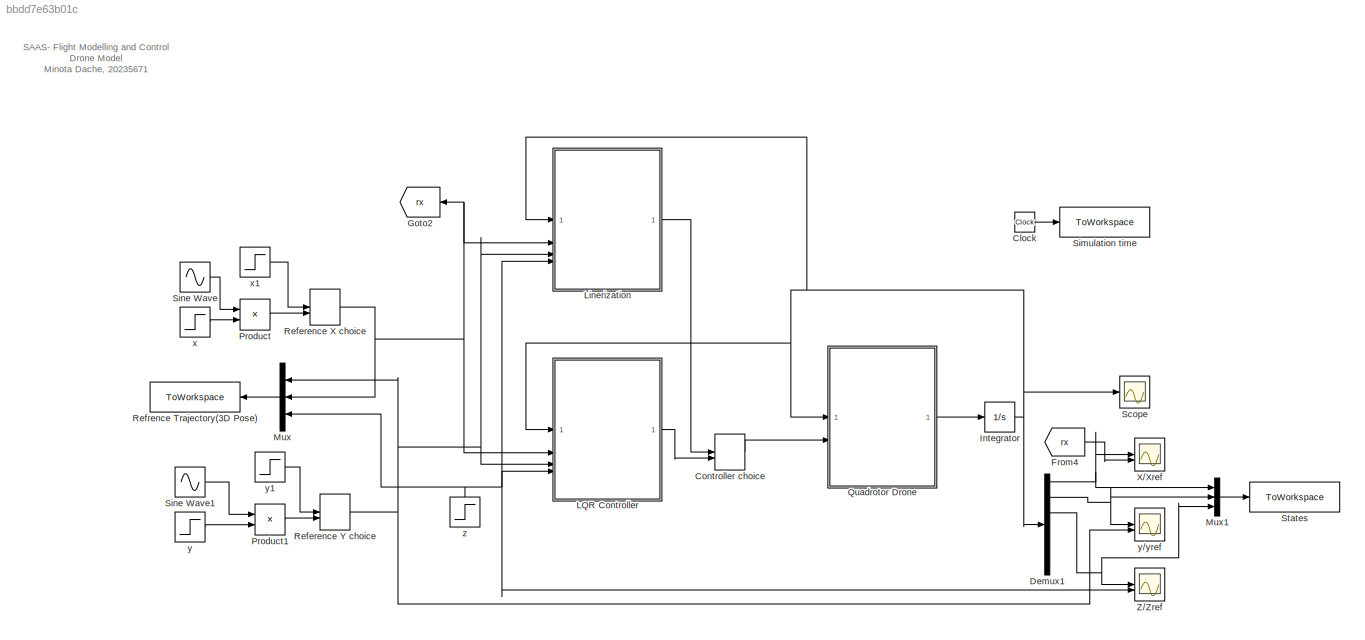
MODEL slx_bbdd7e63b01c
KIND model
CONFIG AbsTol = auto
CONFIG EnableMultiTasking = off
CONFIG FixedStep = auto
CONFIG MaxStep = auto
CONFIG MinStep = auto
CONFIG RelTol = 1e-3
CONFIG SampleTimeConstraint = Unconstrained
CONFIG SolverName = VariableStepAuto
CONFIG StartTime = 0.0
CONFIG StopTime = 100
BLOCK [Clock] Clock
BLOCK [ManualSwitch] Controller choice
BLOCK [Demux] Demux1
  Outputs = 12
BLOCK [From] From4
  GotoTag = rx
BLOCK [Goto] Goto2
  GotoTag = rx
  NameLocation = top
BLOCK [Integrator] Integrator
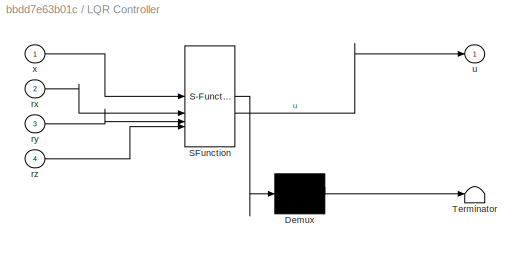
BLOCK [SubSystem] LQR Controller
  ErrorFcn = Stateflow.Translate.translate
  PermitHierarchicalResolution = ExplicitOnly
  SFBlockType = MATLAB Function
  TreatAsAtomicUnit = on
BLOCK [Demux] LQR Controller/ Demux 
  Outputs = 1
BLOCK [S-Function] LQR Controller/ SFunction 
  EnableBusSupport = on
  FunctionName = sf_sfun
  PortCounts = [4 2]
  SFcnIsStateOwnerBlock = off
  SFunctionDeploymentMode = off
  Tag = Stateflow S-Function 1
BLOCK [Terminator] LQR Controller/ Terminator 
BLOCK [Inport] LQR Controller/rx
  Port = 2
BLOCK [Inport] LQR Controller/ry
  Port = 3
BLOCK [Inport] LQR Controller/rz
  Port = 4
BLOCK [Outport] LQR Controller/u
BLOCK [Inport] LQR Controller/x
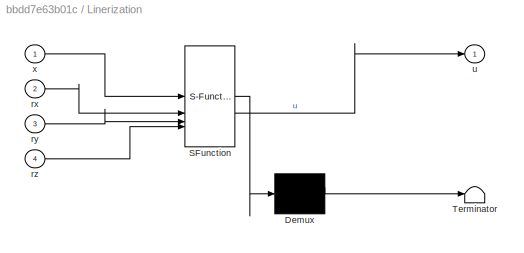
BLOCK [SubSystem] Linerization
  ErrorFcn = Stateflow.Translate.translate
  PermitHierarchicalResolution = ExplicitOnly
  SFBlockType = MATLAB Function
  TreatAsAtomicUnit = on
BLOCK [Demux] Linerization/ Demux 
  Outputs = 1
BLOCK [S-Function] Linerization/ SFunction 
  EnableBusSupport = on
  FunctionName = sf_sfun
  PortCounts = [4 2]
  SFcnIsStateOwnerBlock = off
  SFunctionDeploymentMode = off
  Tag = Stateflow S-Function 3
BLOCK [Terminator] Linerization/ Terminator 
BLOCK [Inport] Linerization/rx
  Port = 2
BLOCK [Inport] Linerization/ry
  Port = 3
BLOCK [Inport] Linerization/rz
  Port = 4
BLOCK [Outport] Linerization/u
BLOCK [Inport] Linerization/x
BLOCK [Mux] Mux
  DisplayOption = bar
  Inputs = 3
  NameLocation = top
BLOCK [Mux] Mux1
  DisplayOption = bar
  Inputs = 3
BLOCK [Product] Product
BLOCK [Product] Product1
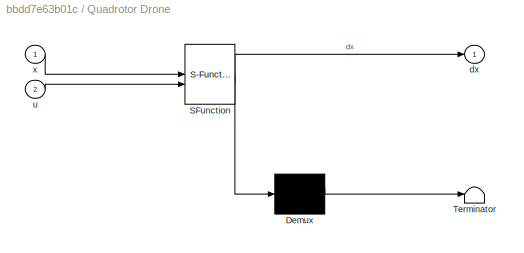
BLOCK [SubSystem] Quadrotor Drone
  ErrorFcn = Stateflow.Translate.translate
  PermitHierarchicalResolution = ExplicitOnly
  SFBlockType = MATLAB Function
  TreatAsAtomicUnit = on
BLOCK [Demux] Quadrotor Drone/ Demux 
  Outputs = 1
BLOCK [S-Function] Quadrotor Drone/ SFunction 
  EnableBusSupport = on
  FunctionName = sf_sfun
  PortCounts = [2 2]
  SFcnIsStateOwnerBlock = off
  SFunctionDeploymentMode = off
  Tag = Stateflow S-Function 2
BLOCK [Terminator] Quadrotor Drone/ Terminator 
BLOCK [Outport] Quadrotor Drone/dx
BLOCK [Inport] Quadrotor Drone/u
  Port = 2
BLOCK [Inport] Quadrotor Drone/x
BLOCK [ManualSwitch] Reference X choice
BLOCK [ManualSwitch] Reference Y choice
BLOCK [ToWorkspace] Refrence Trajectory(3D Pose)
  FixptAsFi = on
  MaxDataPoints = inf
  NameLocation = top
  SampleTime = -1
  VariableName = ref
BLOCK [Scope] Scope
  Floating = off
  NumInputPorts = 1
  ScopeSpecificationString = Simulink.scopes.TimeScopeBlockCfg('CurrentConfiguration', extmgr.ConfigurationSet(extmgr.Configuration('Core','General UI',true),extmgr.Configuration('Core','Source UI',true),extmgr.Configuration('Sources','WiredSimulink',true),extmgr.Configuration('Visuals','Time Domain',true,'SerializedDisplays',{struct('MinYLimReal','-0.25061','MaxYLimReal','1.1395','YLabelReal','','MinYLimMag','0.00000','MaxYL...<+1497ch>
BLOCK [ToWorkspace] Simulation time
  MaxDataPoints = inf
  SampleTime = -1
  VariableName = T
BLOCK [Sin] Sine Wave
  Frequency = 0.05
  SampleTime = 0
BLOCK [Sin] Sine Wave1
  Frequency = 0.05
  SampleTime = 0
BLOCK [ToWorkspace] States
  MaxDataPoints = inf
  SampleTime = -1
  VariableName = S
BLOCK [Scope] X//Xref
  Floating = off
  NumInputPorts = 2
  ScopeSpecificationString = Simulink.scopes.TimeScopeBlockCfg('CurrentConfiguration', extmgr.ConfigurationSet(extmgr.Configuration('Core','General UI',true),extmgr.Configuration('Core','Source UI',true),extmgr.Configuration('Sources','WiredSimulink',true,'DataLoggingVariableName','ScopeData1'),extmgr.Configuration('Visuals','Time Domain',true,'SerializedDisplays',{struct('MinYLimReal','-0.125','MaxYLimReal','1.125','YLabelRe...<+1412ch>
BLOCK [Scope] Z//Zref
  Floating = off
  NumInputPorts = 2
  ScopeSpecificationString = Simulink.scopes.TimeScopeBlockCfg('CurrentConfiguration', extmgr.ConfigurationSet(extmgr.Configuration('Core','General UI',true),extmgr.Configuration('Core','Source UI',true),extmgr.Configuration('Sources','WiredSimulink',true,'DataLoggingVariableName','ScopeData3'),extmgr.Configuration('Visuals','Time Domain',true,'SerializedDisplays',{struct('MinYLimReal','-0.125','MaxYLimReal','1.125','YLabelRe...<+1390ch>
BLOCK [Step] x
  SampleTime = 0
  Time = 10
BLOCK [Step] x1
  SampleTime = 0
  Time = 10
BLOCK [Step] y
  SampleTime = 0
  Time = 20
BLOCK [Scope] y//yref
  Floating = off
  NumInputPorts = 2
  ScopeSpecificationString = Simulink.scopes.TimeScopeBlockCfg('CurrentConfiguration', extmgr.ConfigurationSet(extmgr.Configuration('Core','General UI',true),extmgr.Configuration('Core','Source UI',true),extmgr.Configuration('Sources','WiredSimulink',true,'DataLoggingVariableName','ScopeData2'),extmgr.Configuration('Visuals','Time Domain',true,'SerializedDisplays',{struct('MinYLimReal','-0.125','MaxYLimReal','1.125','YLabelRe...<+1407ch>
BLOCK [Step] y1
  SampleTime = 0
  Time = 10
BLOCK [Step] z
  NameLocation = right
  SampleTime = 0
ANNOTATION (root): SAAS- Flight Modelling and Control Drone Model Minota Dache, 20235671
LINE Clock:1 -> Simulation time:1
LINE Controller choice:1 -> Quadrotor Drone:2
NET Demux1:1 -> Mux1:1, X//Xref:1
NET Demux1:3 -> Mux1:2, y//yref:1
NET Demux1:5 -> Mux1:3, Z//Zref:1
LINE From4:1 -> X//Xref:2
NET Integrator:1 -> Demux1:1, LQR Controller:1, Linerization:1, Quadrotor Drone:1, Scope:1
LINE LQR Controller:1 -> Controller choice:2
LINE Linerization:1 -> Controller choice:1
LINE Mux1:1 -> States:1
LINE Mux:1 -> Refrence Trajectory(3D Pose):1
LINE Product1:1 -> Reference Y choice:2
LINE Product:1 -> Reference X choice:2
LINE Quadrotor Drone:1 -> Integrator:1
NET Reference X choice:1 -> Goto2:1, LQR Controller:2, Linerization:2, Mux:2
NET Reference Y choice:1 -> LQR Controller:3, Linerization:3, Mux:1, y//yref:2
LINE Sine Wave1:1 -> Product1:1
LINE Sine Wave:1 -> Product:1
LINE x1:1 -> Reference X choice:1
LINE x:1 -> Product:2
LINE y1:1 -> Reference Y choice:1
LINE y:1 -> Product1:2
NET z:1 -> LQR Controller:4, Linerization:4, Mux:3, Z//Zref:2
note: NET lines group one-source signal fan-out (src -> all destinations, sorted); 1:1 wires keep LINE
CHART LQR Controller states=1 transitions=1
  STATE_LABEL 'eML_blk_kernel()'
  STATE_LABEL 'SCRIPT:\nfunction u = LQR_Ctrl(x,rx,ry,rz)\n%#codegen\n\nu = zeros(6,1);\n\ng  = 9.81;\n\n% les moments inirtiels \nIxx=7.5*10^-3;\nIyy=7.5*10^-3;\nIzz=1.3*10^-3;\n\nk1 = 2; k2 = 3;\nk3 = 3; k4 = 5;\nk5 = 2; k6 = 4;\nk7 = 2; k8 = 3;\nk9 = 2; k10 = 6;\nk11 = 2; k12 = 3;\n\n% les coeficients \na1=((Iyy-Izz)/Ixx);\na2=((Izz-Ixx)/Iyy);\na3=((Ixx-Iyy)/Izz);\n\nLqr_x = [-1.0000   -2.0815   16.3461    7.7992];\nLqr_y = [1.0000   ...<+276ch>'
CHART Quadrotor Drone states=1 transitions=1
  STATE_LABEL 'eML_blk_kernel()'
  STATE_LABEL 'SCRIPT:\nfunction dx = Quadrotor(x,u)\n%#codegen\n\ng  = 9.81;\n\n% les moments inirtiels \nIxx=7.5*10^-3;\nIyy=7.5*10^-3;\nIzz=1.3*10^-3;\n\n\n% les coeficients \na1=((Iyy-Izz)/Ixx);\na2=((Izz-Ixx)/Iyy);\na3=((Ixx-Iyy)/Izz);\n\ndx = zeros(12,1);\n\ndx(1) = x(2);\ndx(2) = x(12)*x(4)-x(10)*x(6)-g*sin(x(9))+u(1);\ndx(3) = x(4);\ndx(4) = x(8)*x(6)-x(12)*x(2)+g*sin(x(7))*cos(x(9))+u(2);\ndx(5) = x(6);\ndx(6) = x(10)*x(2)-x(8...<+172ch>'
CHART Linerization states=1 transitions=1
  STATE_LABEL 'eML_blk_kernel()'
  STATE_LABEL 'SCRIPT:\nfunction u = fcn(x,rx,ry,rz)\n%#codegen\n\n\nu = zeros(6,1);\n\ng  = 9.81;\n\n% les moments inirtiels \nIxx=7.5*10^-3;\nIyy=7.5*10^-3;\nIzz=1.3*10^-3;\n\nk1 = 2; k2 = 3;\nk3 = 3; k4 = 5;\nk5 = 2; k6 = 4;\nk7 = 2; k8 = 3;\nk9 = 2; k10 = 6;\nk11 = 2; k12 = 3;\n\n% les coeficients \na1=((Iyy-Izz)/Ixx);\na2=((Izz-Ixx)/Iyy);\na3=((Ixx-Iyy)/Izz);\n\n% ld1 = 2;\n% ld2 = 2;\n% s1=(x(2)-drx)+ld1*(x(1)-rx);\n% s2=(x(4)-drx)+ld...<+485ch>'
CHART  states=0 transitions=0
CHART  states=0 transitions=0
CHART  states=0 transitions=0
